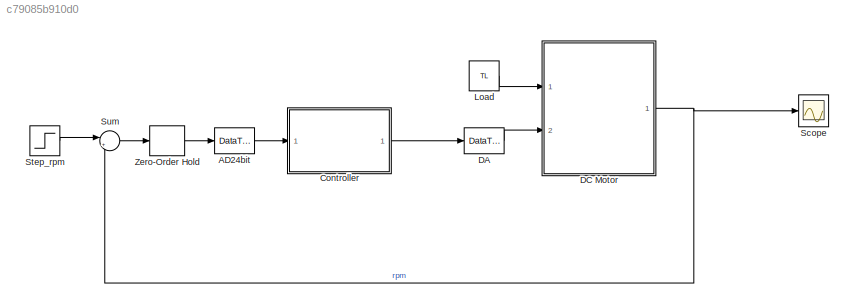
MODEL slx_c79085b910d0
KIND model
CONFIG AbsTol = auto
CONFIG FixedStep = auto
CONFIG MaxStep = 0.0001
CONFIG MinStep = auto
CONFIG PreLoadFcn = La = 1e-3;      % 電機子インダクタンス [H]\nRa = 1;         % 電機子抵抗 [Ω]\nKe = 0.05;      % 逆起電力定数 [V/(rad/s)]\nKt = 0.05;      % トルク定数 [N*m/A]\nJ = 1e-4;       % ロータ慣性モーメント [kg*m^2]\nB = 1e-6;       % ロータ動摩擦係数 [N*m/(rad/s)]\nTL = 0;         % 負荷トルク [N*m]\nsys = tf([0.015 0.38],[1 0.15]);\nsysD = c2d(sys,1/1000, 'tustin');\n[numd, dend] = tfdata(sysD,'v');
CONFIG RelTol = 1e-3
CONFIG SampleTimeConstraint = Unconstrained
CONFIG Solver = ode45
CONFIG SolverMode = Auto
CONFIG SolverName = ode45
CONFIG StartTime = 0.0
CONFIG StopTime = 1
BLOCK [DataTypeConversion] AD24bit
  OutDataTypeStr = fixdt(1,24,10)
  OutMax = 8000
  OutMin = -8000
  RndMeth = Floor
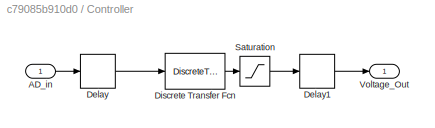
BLOCK [SubSystem] Controller
  Ports = [1, 1]
  RequestExecContextInheritance = off
  Variant = off
BLOCK [Inport] Controller/AD_in
  IconDisplay = Port number
BLOCK [Delay] Controller/Delay
  DelayLength = 1
  InputPortMap = u0
  Ports = [1, 1]
BLOCK [Delay] Controller/Delay1
  DelayLength = 1
  InputPortMap = u0
  Ports = [1, 1]
BLOCK [DiscreteTransferFcn] Controller/Discrete Transfer Fcn
  DenAccumDataTypeStr = fixdt(1,49,32)
  DenCoefDataTypeStr = fixdt(1,24,22)
  DenCoefMax = 1
  DenCoefMin = -1
  DenProductDataTypeStr = fixdt(1,48,32)
  Denominator = dend
  InputPortMap = u0
  NumAccumDataTypeStr = fixdt(1,49,32)
  NumCoefDataTypeStr = fixdt(1,24,22)
  NumCoefMax = 1
  NumCoefMin = -1
  NumProductDataTypeStr = fixdt(1,48,32)
  Numerator = numd
  OutDataTypeStr = fixdt(1,49,32)
  Ports = [1, 1]
  RndMeth = Nearest
BLOCK [Saturate] Controller/Saturation
  InputPortMap = u0
  LowerLimit = -20
  OutDataTypeStr = fixdt(1,24,18)
  OutMax = 20
  OutMin = -20
  Ports = [1, 1]
  UpperLimit = 20
BLOCK [Outport] Controller/Voltage_Out
  IconDisplay = Port number
BLOCK [DataTypeConversion] DA
  OutDataTypeStr = double
  RndMeth = Floor
  SaturateOnIntegerOverflow = off
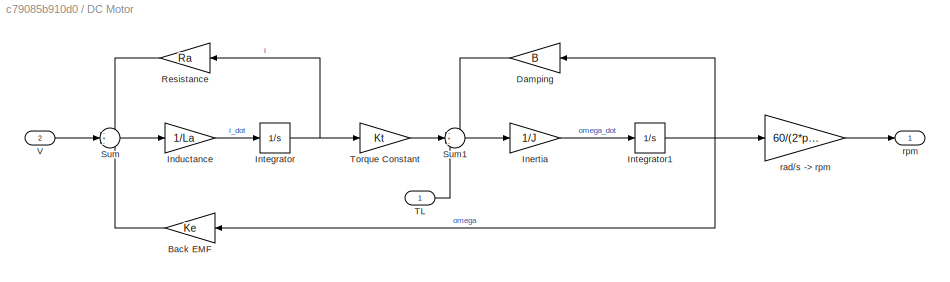
BLOCK [SubSystem] DC Motor
  Ports = [2, 1]
  RequestExecContextInheritance = off
  Variant = off
BLOCK [Gain] DC Motor/Back EMF
  Gain = Ke
  OutDataTypeStr = Inherit: Inherit via internal rule
  ParamDataTypeStr = Inherit: Inherit via internal rule
  SaturateOnIntegerOverflow = off
BLOCK [Gain] DC Motor/Damping
  Gain = B
  OutDataTypeStr = Inherit: Inherit via internal rule
  ParamDataTypeStr = Inherit: Inherit via internal rule
  SaturateOnIntegerOverflow = off
BLOCK [Gain] DC Motor/Inductance
  Gain = 1/La
  OutDataTypeStr = Inherit: Inherit via internal rule
  ParamDataTypeStr = Inherit: Inherit via internal rule
  SaturateOnIntegerOverflow = off
BLOCK [Gain] DC Motor/Inertia
  Gain = 1/J
  OutDataTypeStr = Inherit: Inherit via internal rule
  ParamDataTypeStr = Inherit: Inherit via internal rule
  SaturateOnIntegerOverflow = off
BLOCK [Integrator] DC Motor/Integrator
  Ports = [1, 1]
BLOCK [Integrator] DC Motor/Integrator1
  Ports = [1, 1]
BLOCK [Gain] DC Motor/Resistance
  Gain = Ra
  OutDataTypeStr = Inherit: Inherit via internal rule
  ParamDataTypeStr = Inherit: Inherit via internal rule
  SaturateOnIntegerOverflow = off
BLOCK [Sum] DC Motor/Sum
  IconShape = round
  InputSameDT = off
  Inputs = -+-
  OutDataTypeStr = Inherit: Inherit via internal rule
  Ports = [3, 1]
  SaturateOnIntegerOverflow = off
BLOCK [Sum] DC Motor/Sum1
  IconShape = round
  InputSameDT = off
  Inputs = -+-
  OutDataTypeStr = Inherit: Inherit via internal rule
  Ports = [3, 1]
  SaturateOnIntegerOverflow = off
BLOCK [Inport] DC Motor/TL
  IconDisplay = Port number
BLOCK [Gain] DC Motor/Torque Constant
  Gain = Kt
  OutDataTypeStr = Inherit: Inherit via internal rule
  ParamDataTypeStr = Inherit: Inherit via internal rule
  SaturateOnIntegerOverflow = off
BLOCK [Inport] DC Motor/V
  IconDisplay = Port number
  Port = 2
BLOCK [Gain] DC Motor/rad//s -> rpm
  Gain = 60/(2*pi)
  OutDataTypeStr = Inherit: Inherit via internal rule
  ParamDataTypeStr = Inherit: Inherit via internal rule
  SaturateOnIntegerOverflow = off
BLOCK [Outport] DC Motor/rpm
  IconDisplay = Port number
BLOCK [Constant] Load
  Value = TL
BLOCK [Scope] Scope
  Ports = [1]
  ScopeSpecificationString = Simulink.scopes.TimeScopeBlockCfg('CurrentConfiguration', extmgr.ConfigurationSet(extmgr.Configuration('Core','General UI',true),extmgr.Configuration('Core','Source UI',true),extmgr.Configuration('Sources','WiredSimulink',true,'DataLoggingSaveFormat','StructureWithTime','DataLoggingDecimation','1','DataLoggingDecimateData',true),extmgr.Configuration('Visuals','Time Domain',true,'SerializedDisplays...<+1651ch>
BLOCK [Step] Step_rpm
  After = 500
  SampleTime = 0
  Time = 0.1
BLOCK [Sum] Sum
  IconShape = round
  InputSameDT = off
  Inputs = |+-
  OutDataTypeStr = Inherit: Inherit via internal rule
  Ports = [2, 1]
  SaturateOnIntegerOverflow = off
BLOCK [ZeroOrderHold] Zero-Order Hold
  SampleTime = 1/1000
LINE AD24bit:1 -> Controller:1
LINE Controller/AD_in:1 -> Controller/Delay:1
LINE Controller/Delay1:1 -> Controller/Voltage_Out:1
LINE Controller/Delay:1 -> Controller/Discrete Transfer Fcn:1
LINE Controller/Discrete Transfer Fcn:1 -> Controller/Saturation:1
LINE Controller/Saturation:1 -> Controller/Delay1:1
LINE Controller:1 -> DA:1
LINE DA:1 -> DC Motor:2
LINE DC Motor/Back EMF:1 -> DC Motor/Sum:3
LINE DC Motor/Damping:1 -> DC Motor/Sum1:1
LINE DC Motor/Inductance:1 -> DC Motor/Integrator:1
LINE DC Motor/Inertia:1 -> DC Motor/Integrator1:1
NET DC Motor/Integrator1:1 -> DC Motor/Back EMF:1, DC Motor/Damping:1, DC Motor/rad//s -> rpm:1
NET DC Motor/Integrator:1 -> DC Motor/Resistance:1, DC Motor/Torque Constant:1
LINE DC Motor/Resistance:1 -> DC Motor/Sum:1
LINE DC Motor/Sum1:1 -> DC Motor/Inertia:1
LINE DC Motor/Sum:1 -> DC Motor/Inductance:1
LINE DC Motor/TL:1 -> DC Motor/Sum1:3
LINE DC Motor/Torque Constant:1 -> DC Motor/Sum1:2
LINE DC Motor/V:1 -> DC Motor/Sum:2
LINE DC Motor/rad//s -> rpm:1 -> DC Motor/rpm:1
NET DC Motor:1 -> Scope:1, Sum:2
LINE Load:1 -> DC Motor:1
LINE Step_rpm:1 -> Sum:1
LINE Sum:1 -> Zero-Order Hold:1
LINE Zero-Order Hold:1 -> AD24bit:1
note: NET lines group one-source signal fan-out (src -> all destinations, sorted); 1:1 wires keep LINE
